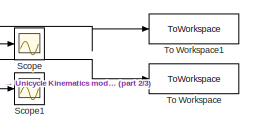
[diagram: root canvas - part 1/3, top right region]
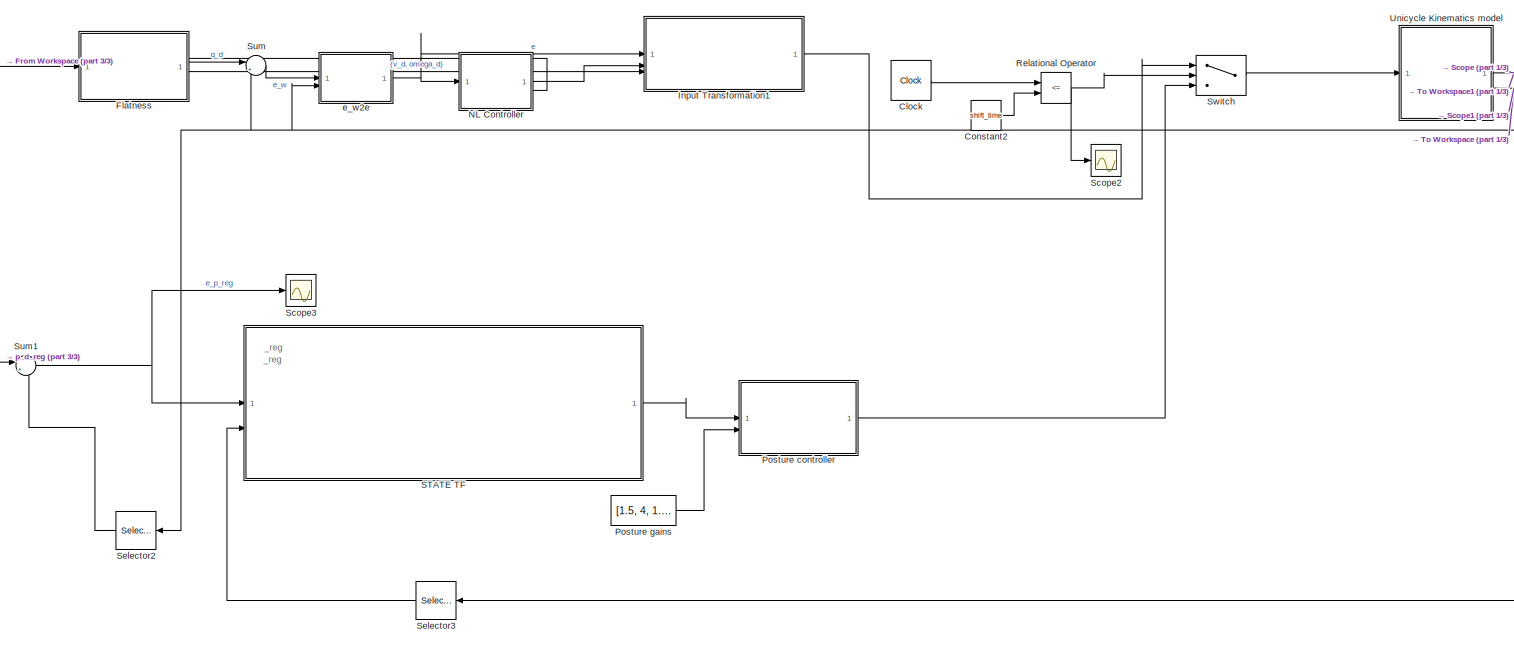
[diagram: root canvas - part 2/3, most of the canvas]
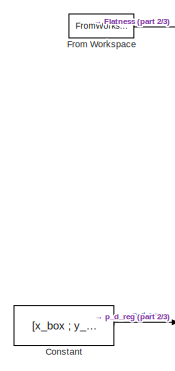
[diagram: root canvas - part 3/3, middle left region]
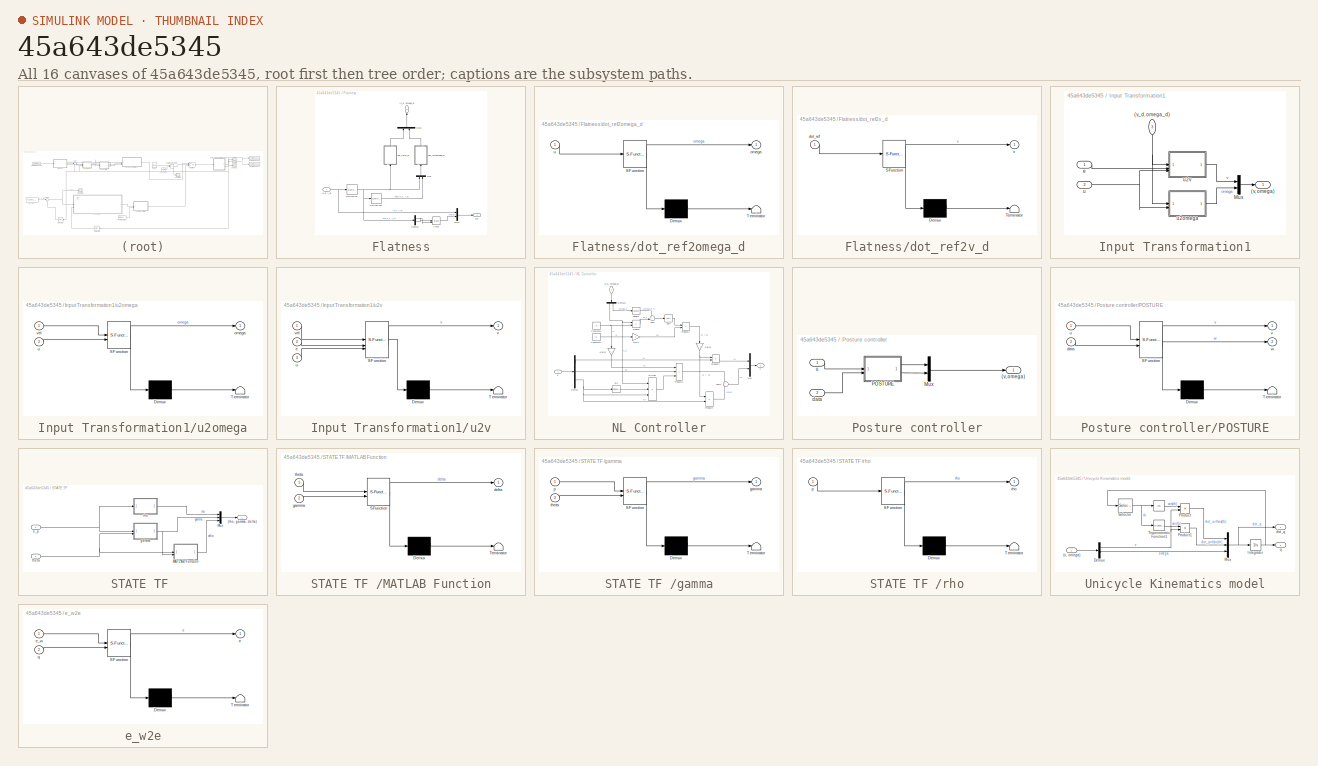
[diagram: thumbnail index - all 16 canvases of the model, root first then tree order]
MODEL slx_45a643de5345
KIND model
CONFIG AbsTol = auto
CONFIG EnableMultiTasking = off
CONFIG FixedStep = 0.0005
CONFIG MaxStep = auto
CONFIG MinStep = auto
CONFIG RelTol = 1e-3
CONFIG SampleTimeConstraint = Unconstrained
CONFIG SolverName = ode8
CONFIG StartTime = 0.0
CONFIG StopTime = 30
BLOCK [Clock] Clock
BLOCK [Constant] Constant
  Value = [x_box ; y_box]
BLOCK [Constant] Constant2
  Value = shift_time
BLOCK [SubSystem] Flatness
  PortSchema = {"entries":[{"content":{"sides":[{"content":{"connectorIds":["In1"]},"type":"ConnectorPlacement.EquallySpacedRectSide","uuid":"bc490c8e-5666-439b-9939-62bd84628b1f"},{"content":{"connectorIds":["Out1"],"side":"RIGHT"},"type":"ConnectorPlacement.EquallySpacedRectSide","uuid":"03a20fcc-2a82-4af2-a970-ff3426fda7d9"},{"content":{"connectorIds":["Out2"],"side":"TOP"},"type":"ConnectorPlacement.EquallyS...<+246ch>
BLOCK [Outport] Flatness/(v_d, omega_d)
  NameLocation = right
  Port = 2
BLOCK [Inport] Flatness/(x_d, y_d)
BLOCK [Trigonometry] Flatness/Atan2
  Operator = atan2
BLOCK [Demux] Flatness/Demux
  Outputs = 2
BLOCK [Derivative] Flatness/Derivative
BLOCK [Derivative] Flatness/Derivative1
BLOCK [Mux] Flatness/Mux
  DisplayOption = bar
  Inputs = 2
  NameLocation = right
BLOCK [Mux] Flatness/Mux1
  DisplayOption = bar
  Inputs = 2
BLOCK [Mux] Flatness/Mux2
  DisplayOption = bar
  Inputs = 2
  NameLocation = right
BLOCK [SubSystem] Flatness/dot_ref2omega_d
  ErrorFcn = Stateflow.Translate.translate
  NameLocation = right
  PermitHierarchicalResolution = ExplicitOnly
  SFBlockType = MATLAB Function
  TreatAsAtomicUnit = on
BLOCK [Demux] Flatness/dot_ref2omega_d/ Demux 
  Outputs = 1
BLOCK [S-Function] Flatness/dot_ref2omega_d/ SFunction 
  EnableBusSupport = off
  FunctionName = sf_sfun
  PortCounts = [1 2]
  SFcnIsStateOwnerBlock = off
  SFunctionDeploymentMode = off
  Tag = Stateflow S-Function 1
BLOCK [Terminator] Flatness/dot_ref2omega_d/ Terminator 
BLOCK [Outport] Flatness/dot_ref2omega_d/omega
BLOCK [Inport] Flatness/dot_ref2omega_d/u
BLOCK [SubSystem] Flatness/dot_ref2v_d
  ErrorFcn = Stateflow.Translate.translate
  NameLocation = right
  PermitHierarchicalResolution = ExplicitOnly
  SFBlockType = MATLAB Function
  TreatAsAtomicUnit = on
BLOCK [Demux] Flatness/dot_ref2v_d/ Demux 
  Outputs = 1
BLOCK [S-Function] Flatness/dot_ref2v_d/ SFunction 
  EnableBusSupport = off
  FunctionName = sf_sfun
  PortCounts = [1 2]
  SFcnIsStateOwnerBlock = off
  SFunctionDeploymentMode = off
  Tag = Stateflow S-Function 2
BLOCK [Terminator] Flatness/dot_ref2v_d/ Terminator 
BLOCK [Inport] Flatness/dot_ref2v_d/dot_ref
BLOCK [Outport] Flatness/dot_ref2v_d/v
BLOCK [Outport] Flatness/q_d
BLOCK [FromWorkspace] From Workspace
  OutDataTypeStr = double
  SampleTime = -1
  VariableName = ref
BLOCK [SubSystem] Input Transformation1
  PortSchema = {"entries":[{"content":{"sides":[{"content":{"connectorIds":["In1","In2"]},"type":"ConnectorPlacement.EquallySpacedRectSide","uuid":"4cbebdc1-8913-4bb0-9524-d854c819f784"},{"content":{"connectorIds":["Out1"],"side":"RIGHT"},"type":"ConnectorPlacement.EquallySpacedRectSide","uuid":"178a2b4a-0c33-47f3-8be3-bd76dfc47961"},{"content":{"connectorIds":["In3"],"side":"TOP"},"type":"ConnectorPlacement.Equ...<+251ch>
BLOCK [Outport] Input Transformation1/(v, omega)
BLOCK [Inport] Input Transformation1/(v_d, omega_d)
  NameLocation = left
  Port = 3
BLOCK [Mux] Input Transformation1/Mux
  DisplayOption = bar
  Inputs = 2
BLOCK [Inport] Input Transformation1/e
BLOCK [Inport] Input Transformation1/u
  Port = 2
BLOCK [SubSystem] Input Transformation1/u2omega
  ErrorFcn = Stateflow.Translate.translate
  PermitHierarchicalResolution = ExplicitOnly
  SFBlockType = MATLAB Function
  TreatAsAtomicUnit = on
BLOCK [Demux] Input Transformation1/u2omega/ Demux 
  Outputs = 1
BLOCK [S-Function] Input Transformation1/u2omega/ SFunction 
  EnableBusSupport = off
  FunctionName = sf_sfun
  PortCounts = [2 2]
  SFcnIsStateOwnerBlock = off
  SFunctionDeploymentMode = off
  Tag = Stateflow S-Function 6
BLOCK [Terminator] Input Transformation1/u2omega/ Terminator 
BLOCK [Outport] Input Transformation1/u2omega/omega
BLOCK [Inport] Input Transformation1/u2omega/u
  Port = 2
BLOCK [Inport] Input Transformation1/u2omega/vel
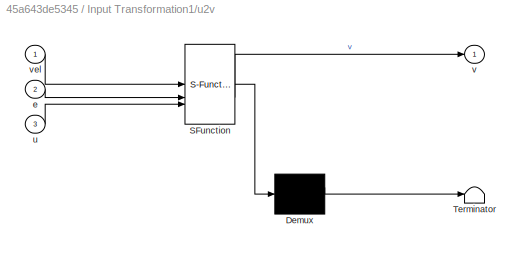
BLOCK [SubSystem] Input Transformation1/u2v
  ErrorFcn = Stateflow.Translate.translate
  PermitHierarchicalResolution = ExplicitOnly
  SFBlockType = MATLAB Function
  TreatAsAtomicUnit = on
BLOCK [Demux] Input Transformation1/u2v/ Demux 
  Outputs = 1
BLOCK [S-Function] Input Transformation1/u2v/ SFunction 
  EnableBusSupport = off
  FunctionName = sf_sfun
  PortCounts = [3 2]
  SFcnIsStateOwnerBlock = off
  SFunctionDeploymentMode = off
  Tag = Stateflow S-Function 7
BLOCK [Terminator] Input Transformation1/u2v/ Terminator 
BLOCK [Inport] Input Transformation1/u2v/e
  Port = 2
BLOCK [Inport] Input Transformation1/u2v/u
  Port = 3
BLOCK [Outport] Input Transformation1/u2v/v
BLOCK [Inport] Input Transformation1/u2v/vel
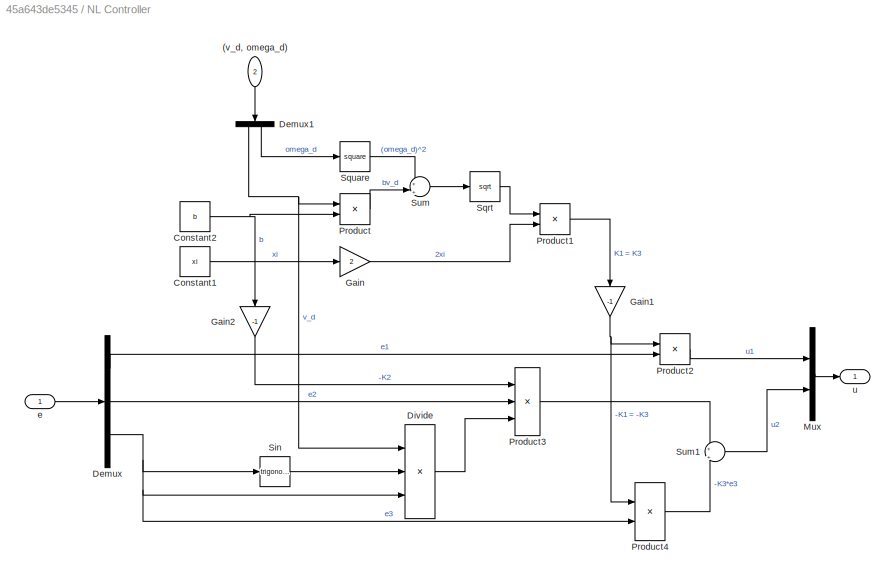
BLOCK [SubSystem] NL Controller
  PortSchema = {"entries":[{"content":{"sides":[{"content":{"connectorIds":["In1"]},"type":"ConnectorPlacement.EquallySpacedRectSide","uuid":"111a75b0-1720-417b-bb3b-4eef3b94ce3e"},{"content":{"connectorIds":["Out1"],"side":"RIGHT"},"type":"ConnectorPlacement.EquallySpacedRectSide","uuid":"fd08faf2-16f9-4b1a-8555-2743d2eb322e"},{"content":{"connectorIds":["In2"],"side":"TOP"},"type":"ConnectorPlacement.EquallySp...<+245ch>
BLOCK [Inport] NL Controller/(v_d, omega_d)
  NameLocation = left
  Port = 2
BLOCK [Constant] NL Controller/Constant1
  Value = xi
BLOCK [Constant] NL Controller/Constant2
  Value = b
BLOCK [Demux] NL Controller/Demux
  Outputs = 3
BLOCK [Demux] NL Controller/Demux1
  NameLocation = left
  Outputs = 2
BLOCK [Product] NL Controller/Divide
  Inputs = **/
BLOCK [Gain] NL Controller/Gain
  Gain = 2
BLOCK [Gain] NL Controller/Gain1
  Gain = -1
  NameLocation = left
BLOCK [Gain] NL Controller/Gain2
  Gain = -1
  NameLocation = left
BLOCK [Mux] NL Controller/Mux
  DisplayOption = bar
  Inputs = 2
BLOCK [Product] NL Controller/Product
BLOCK [Product] NL Controller/Product1
BLOCK [Product] NL Controller/Product2
BLOCK [Product] NL Controller/Product3
  Inputs = 3
BLOCK [Product] NL Controller/Product4
BLOCK [Trigonometry] NL Controller/Sin
BLOCK [Sqrt] NL Controller/Sqrt
BLOCK [Math] NL Controller/Square
  Operator = square
BLOCK [Sum] NL Controller/Sum
  Inputs = +|+
BLOCK [Sum] NL Controller/Sum1
  Inputs = +|+
BLOCK [Inport] NL Controller/e
BLOCK [Outport] NL Controller/u
BLOCK [SubSystem] Posture controller
BLOCK [Outport] Posture controller/(v, omega)
BLOCK [Mux] Posture controller/Mux
  DisplayOption = bar
  Inputs = 2
BLOCK [SubSystem] Posture controller/POSTURE
  ErrorFcn = Stateflow.Translate.translate
  PermitHierarchicalResolution = ExplicitOnly
  SFBlockType = MATLAB Function
  TreatAsAtomicUnit = on
BLOCK [Demux] Posture controller/POSTURE/ Demux 
  Outputs = 1
BLOCK [S-Function] Posture controller/POSTURE/ SFunction 
  EnableBusSupport = off
  FunctionName = sf_sfun
  PortCounts = [2 3]
  SFcnIsStateOwnerBlock = off
  SFunctionDeploymentMode = off
  Tag = Stateflow S-Function 8
BLOCK [Terminator] Posture controller/POSTURE/ Terminator 
BLOCK [Inport] Posture controller/POSTURE/data
  Port = 2
BLOCK [Inport] Posture controller/POSTURE/u
BLOCK [Outport] Posture controller/POSTURE/v
BLOCK [Outport] Posture controller/POSTURE/w
  Port = 2
BLOCK [Inport] Posture controller/data
  Port = 2
BLOCK [Inport] Posture controller/u
BLOCK [Constant] Posture gains
  Value = [1.5, 4, 1.5]
BLOCK [RelationalOperator] Relational Operator
  InputSameDT = off
  Operator = <=
  OutDataTypeStr = boolean
  RndMeth = Simplest
BLOCK [SubSystem] STATE TF 
BLOCK [Outport] STATE TF /(rho, gamma, delta)
BLOCK [SubSystem] STATE TF /MATLAB Function
  ErrorFcn = Stateflow.Translate.translate
  PermitHierarchicalResolution = ExplicitOnly
  SFBlockType = MATLAB Function
  TreatAsAtomicUnit = on
BLOCK [Demux] STATE TF /MATLAB Function/ Demux 
  Outputs = 1
BLOCK [S-Function] STATE TF /MATLAB Function/ SFunction 
  EnableBusSupport = off
  FunctionName = sf_sfun
  PortCounts = [2 2]
  SFcnIsStateOwnerBlock = off
  SFunctionDeploymentMode = off
  Tag = Stateflow S-Function 4
BLOCK [Terminator] STATE TF /MATLAB Function/ Terminator 
BLOCK [Outport] STATE TF /MATLAB Function/delta
BLOCK [Inport] STATE TF /MATLAB Function/gamma
  Port = 2
BLOCK [Inport] STATE TF /MATLAB Function/theta
BLOCK [Mux] STATE TF /Mux
  DisplayOption = bar
  Inputs = 3
BLOCK [Inport] STATE TF /e_p
BLOCK [SubSystem] STATE TF /gamma
  ErrorFcn = Stateflow.Translate.translate
  PermitHierarchicalResolution = ExplicitOnly
  SFBlockType = MATLAB Function
  TreatAsAtomicUnit = on
BLOCK [Demux] STATE TF /gamma/ Demux 
  Outputs = 1
BLOCK [S-Function] STATE TF /gamma/ SFunction 
  EnableBusSupport = off
  FunctionName = sf_sfun
  PortCounts = [2 2]
  SFcnIsStateOwnerBlock = off
  SFunctionDeploymentMode = off
  Tag = Stateflow S-Function 9
BLOCK [Terminator] STATE TF /gamma/ Terminator 
BLOCK [Outport] STATE TF /gamma/gamma
BLOCK [Inport] STATE TF /gamma/p
BLOCK [Inport] STATE TF /gamma/theta
  Port = 2
BLOCK [SubSystem] STATE TF /rho
  ErrorFcn = Stateflow.Translate.translate
  PermitHierarchicalResolution = ExplicitOnly
  SFBlockType = MATLAB Function
  TreatAsAtomicUnit = on
BLOCK [Demux] STATE TF /rho/ Demux 
  Outputs = 1
BLOCK [S-Function] STATE TF /rho/ SFunction 
  EnableBusSupport = off
  FunctionName = sf_sfun
  PortCounts = [1 2]
  SFcnIsStateOwnerBlock = off
  SFunctionDeploymentMode = off
  Tag = Stateflow S-Function 10
BLOCK [Terminator] STATE TF /rho/ Terminator 
BLOCK [Inport] STATE TF /rho/p
BLOCK [Outport] STATE TF /rho/rho
BLOCK [Inport] STATE TF /theta
  Port = 2
BLOCK [Scope] Scope
  ActiveDisplayYMaximum = 630.93592933265336
  ActiveDisplayYMinimum = -1203.2949656136366
  DataLoggingVariableName = ScopeData1
  Floating = off
  GraphicalSettings = {"AxesScalingProperties":{"AlignXAxis":"Center","AlignYAxis":"Center","AutoScaleXAxisLimits":false,"AxesScaling":"auto","AxesScalingNumUpdates":10,"ExpandOnly":true,"ScaleAxesLimitsAtStop":false,"XAxisDataRange":100,"YAxisDataRange":80},"DisplayProperties":{"ColorOrder":["auto","auto","auto","auto","auto","auto","auto","auto","auto","auto","auto","auto","auto","auto","auto","auto","auto","auto","a...<+2366ch>
  MultipleDisplayCache = [{"MaxYLimMag":10,"MaxYLimReal":630.93592933265336,"MinYLimMag":0,"MinYLimReal":-1203.2949656136366,"PlotAsMagnitudePhase":false,"ShowGrid":true,"ShowLegend":false,"Title":"%<SignalLabel>","YLabel":""}]
  NumInputPorts = 1
  ScopeFrameLocation = window
  WasSavedAsWebScope = on
  WindowPosition = [47.000000,38.000000,1874.000000,1011.000000,]
BLOCK [Scope] Scope1
  ActiveDisplayYMaximum = 1768.6609369051803
  ActiveDisplayYMinimum = -1531.5469839571588
  DisplayFullPath = on
  Floating = off
  GraphicalSettings = {"Style":{"BackgroundColor":[0.12941176470588237,0.12941176470588237,0.12941176470588237],"AxesColor":[0.07058823529411765,0.07058823529411765,0.07058823529411765],"LabelsColor":[0.8509803921568627,0.8509803921568627,0.8509803921568627],"PreserveColors":false,"Visible":[true,true,true],"LineStyle":["-","-","-"],"LineWidth":[1.5,1.5,1.5],"BarWidth":[0.9,0.9,0.9],"LineColor":["auto","auto","auto"],"...<+2358ch>
  MultipleDisplayCache = [{"MaxYLimMag":1518.8667037704936,"MaxYLimReal":1768.6609369051803,"MinYLimMag":0,"MinYLimReal":-1531.5469839571588,"PlotAsMagnitudePhase":false,"ShowGrid":true,"ShowLegend":true,"Title":"%<SignalLabel>","YLabel":""}]
  NumInputPorts = 1
  OpenAtSimulationStart = on
  ScopeFrameLocation = window
  ShowLegend = on
  Visible = on
  WasSavedAsWebScope = on
  WindowPosition = [47.000000,1.000000,937.000000,1011.000000,]
BLOCK [Scope] Scope2
  ActiveDisplayYMaximum = 1
  ActiveDisplayYMinimum = -1
  DataLoggingVariableName = ScopeData2
  Floating = off
  GraphicalSettings = {"Style":{"BackgroundColor":[0.12941176470588237,0.12941176470588237,0.12941176470588237],"AxesColor":[0.07058823529411765,0.07058823529411765,0.07058823529411765],"LabelsColor":[0.8509803921568627,0.8509803921568627,0.8509803921568627],"PreserveColors":false,"Visible":[true],"LineStyle":["-"],"LineWidth":[1.5],"BarWidth":[0.9],"LineColor":["auto"],"LineFaceAlpha":[1],"LineEdgeAlpha":[1],"Marker":...<+1926ch>
  MultipleDisplayCache = [{"MaxYLimMag":1,"MaxYLimReal":1,"MinYLimMag":0,"MinYLimReal":-1,"PlotAsMagnitudePhase":false,"ShowGrid":true,"ShowLegend":false,"Title":"%<SignalLabel>","YLabel":""}]
  NumInputPorts = 1
  ScopeFrameLocation = window
  WasSavedAsWebScope = on
  WindowPosition = [680.000000,367.000000,560.000000,420.000000,]
BLOCK [Scope] Scope3
  ActiveDisplayYMaximum = 1.6973761395009817E+6
  ActiveDisplayYMinimum = -1.5184248324601922E+7
  DataLoggingVariableName = ScopeData3
  Floating = off
  GraphicalSettings = {"Style":{"BackgroundColor":[0.12941176470588237,0.12941176470588237,0.12941176470588237],"AxesColor":[0.07058823529411765,0.07058823529411765,0.07058823529411765],"LabelsColor":[0.8509803921568627,0.8509803921568627,0.8509803921568627],"PreserveColors":false,"Visible":[true,true],"LineStyle":["-","-"],"LineWidth":[1.5,1.5],"BarWidth":[0.9,0.9],"LineColor":["auto","auto"],"LineFaceAlpha":[1,1],"Li...<+2108ch>
  MultipleDisplayCache = [{"MaxYLimMag":1.5184248324601922E+7,"MaxYLimReal":1.6973761395009817E+6,"MinYLimMag":0,"MinYLimReal":-1.5184248324601922E+7,"PlotAsMagnitudePhase":false,"ShowGrid":true,"ShowLegend":false,"Title":"%<SignalLabel>","YLabel":""}]
  NumInputPorts = 1
  ScopeFrameLocation = window
  WasSavedAsWebScope = on
  WindowPosition = [47.000000,38.000000,1874.000000,1011.000000,]
BLOCK [Selector] Selector2
  IndexOptions = Index vector (dialog)
  Indices = [1 2]
  InputPortWidth = 3
  OutputSizes = 1
BLOCK [Selector] Selector3
  IndexOptions = Index vector (dialog)
  Indices = [3]
  InputPortWidth = 3
  OutputSizes = 1
BLOCK [Sum] Sum
  Inputs = |+-
BLOCK [Sum] Sum1
  Inputs = |+-
BLOCK [Switch] Switch
  Criteria = u2 ~= 0
  InputSameDT = off
  SaturateOnIntegerOverflow = off
BLOCK [ToWorkspace] To Workspace
  FixptAsFi = on
  MaxDataPoints = inf
  SampleTime = -1
  SaveFormat = Timeseries
  VariableName = q
BLOCK [ToWorkspace] To Workspace1
  FixptAsFi = on
  MaxDataPoints = inf
  SampleTime = -1
  SaveFormat = Timeseries
  VariableName = qdot
BLOCK [SubSystem] Unicycle Kinematics model
BLOCK [Trigonometry] Unicycle Kinematics model/ 
  Operator = cos
BLOCK [Inport] Unicycle Kinematics model/(v, omega)
BLOCK [Demux] Unicycle Kinematics model/Demux
  Outputs = 2
BLOCK [Integrator] Unicycle Kinematics model/Integrator
  InitialCondition = [1e-16; 1e-16; pi/4]
BLOCK [Mux] Unicycle Kinematics model/Mux
  DisplayOption = bar
  Inputs = 3
BLOCK [Product] Unicycle Kinematics model/Product
BLOCK [Product] Unicycle Kinematics model/Product1
BLOCK [Selector] Unicycle Kinematics model/Selector
  IndexOptions = Index vector (dialog)
  Indices = [3]
  InputPortWidth = 3
  OutputSizes = 1
BLOCK [Trigonometry] Unicycle Kinematics model/Trigonometric Function1
BLOCK [Outport] Unicycle Kinematics model/dot_q
BLOCK [Outport] Unicycle Kinematics model/q
  Port = 2
BLOCK [SubSystem] e_w2e
  ErrorFcn = Stateflow.Translate.translate
  PermitHierarchicalResolution = ExplicitOnly
  SFBlockType = MATLAB Function
  TreatAsAtomicUnit = on
BLOCK [Demux] e_w2e/ Demux 
  Outputs = 1
BLOCK [S-Function] e_w2e/ SFunction 
  EnableBusSupport = off
  FunctionName = sf_sfun
  PortCounts = [2 2]
  SFcnIsStateOwnerBlock = off
  SFunctionDeploymentMode = off
  Tag = Stateflow S-Function 3
BLOCK [Terminator] e_w2e/ Terminator 
BLOCK [Outport] e_w2e/e
BLOCK [Inport] e_w2e/e_w
BLOCK [Inport] e_w2e/q
  Port = 2
ANNOTATION (root): _reg
LINE Clock:1 -> Relational Operator:1
LINE Constant2:1 -> Relational Operator:2
LINE Constant:1 -> Sum1:1
NET Flatness/(x_d, y_d):1 -> Flatness/Derivative:1, Flatness/Mux1:1
LINE Flatness/Atan2:1 -> Flatness/Mux1:2
LINE Flatness/Demux:1 -> Flatness/Atan2:2
LINE Flatness/Demux:2 -> Flatness/Atan2:1
LINE Flatness/Derivative1:1 -> Flatness/Mux:2
NET Flatness/Derivative:1 -> Flatness/Demux:1, Flatness/Derivative1:1, Flatness/Mux:1, Flatness/dot_ref2v_d:1
LINE Flatness/Mux1:1 -> Flatness/q_d:1
LINE Flatness/Mux2:1 -> Flatness/(v_d, omega_d):1
LINE Flatness/Mux:1 -> Flatness/dot_ref2omega_d:1
LINE Flatness/dot_ref2omega_d:1 -> Flatness/Mux2:2
LINE Flatness/dot_ref2v_d:1 -> Flatness/Mux2:1
LINE Flatness:1 -> Sum:1
NET Flatness:2 -> Input Transformation1:3, NL Controller:2
LINE From Workspace:1 -> Flatness:1
NET Input Transformation1/(v_d, omega_d):1 -> Input Transformation1/u2omega:1, Input Transformation1/u2v:1
LINE Input Transformation1/Mux:1 -> Input Transformation1/(v, omega):1
LINE Input Transformation1/e:1 -> Input Transformation1/u2v:2
LINE Input Transformation1/u2omega:1 -> Input Transformation1/Mux:2
LINE Input Transformation1/u2v:1 -> Input Transformation1/Mux:1
NET Input Transformation1/u:1 -> Input Transformation1/u2omega:2, Input Transformation1/u2v:3
LINE Input Transformation1:1 -> Switch:1
LINE NL Controller/(v_d, omega_d):1 -> NL Controller/Demux1:1
LINE NL Controller/Constant1:1 -> NL Controller/Gain:1
NET NL Controller/Constant2:1 -> NL Controller/Gain2:1, NL Controller/Product:2
NET NL Controller/Demux1:1 -> NL Controller/Divide:1, NL Controller/Product:1
LINE NL Controller/Demux1:2 -> NL Controller/Square:1
LINE NL Controller/Demux:1 -> NL Controller/Product2:2
LINE NL Controller/Demux:2 -> NL Controller/Product3:2
NET NL Controller/Demux:3 -> NL Controller/Divide:3, NL Controller/Product4:2, NL Controller/Sin:1
LINE NL Controller/Divide:1 -> NL Controller/Product3:3
NET NL Controller/Gain1:1 -> NL Controller/Product2:1, NL Controller/Product4:1
LINE NL Controller/Gain2:1 -> NL Controller/Product3:1
LINE NL Controller/Gain:1 -> NL Controller/Product1:2
LINE NL Controller/Mux:1 -> NL Controller/u:1
LINE NL Controller/Product1:1 -> NL Controller/Gain1:1
LINE NL Controller/Product2:1 -> NL Controller/Mux:1
LINE NL Controller/Product3:1 -> NL Controller/Sum1:1
LINE NL Controller/Product4:1 -> NL Controller/Sum1:2
LINE NL Controller/Product:1 -> NL Controller/Sum:2
LINE NL Controller/Sin:1 -> NL Controller/Divide:2
LINE NL Controller/Sqrt:1 -> NL Controller/Product1:1
LINE NL Controller/Square:1 -> NL Controller/Sum:1
LINE NL Controller/Sum1:1 -> NL Controller/Mux:2
LINE NL Controller/Sum:1 -> NL Controller/Sqrt:1
LINE NL Controller/e:1 -> NL Controller/Demux:1
LINE NL Controller:1 -> Input Transformation1:2
LINE Posture controller/Mux:1 -> Posture controller/(v, omega):1
LINE Posture controller/POSTURE:1 -> Posture controller/Mux:1
LINE Posture controller/POSTURE:2 -> Posture controller/Mux:2
LINE Posture controller/data:1 -> Posture controller/POSTURE:2
LINE Posture controller/u:1 -> Posture controller/POSTURE:1
LINE Posture controller:1 -> Switch:3
LINE Posture gains:1 -> Posture controller:2
NET Relational Operator:1 -> Scope2:1, Switch:2
LINE STATE TF /MATLAB Function:1 -> STATE TF /Mux:3
LINE STATE TF /Mux:1 -> STATE TF /(rho, gamma, delta):1
NET STATE TF /e_p:1 -> STATE TF /gamma:1, STATE TF /rho:1
NET STATE TF /gamma:1 -> STATE TF /MATLAB Function:2, STATE TF /Mux:2
LINE STATE TF /rho:1 -> STATE TF /Mux:1
NET STATE TF /theta:1 -> STATE TF /MATLAB Function:1, STATE TF /gamma:2
LINE STATE TF :1 -> Posture controller:1
LINE Selector2:1 -> Sum1:2
LINE Selector3:1 -> STATE TF :2
NET Sum1:1 -> STATE TF :1, Scope3:1
LINE Sum:1 -> e_w2e:1
LINE Switch:1 -> Unicycle Kinematics model:1
LINE Unicycle Kinematics model/ :1 -> Unicycle Kinematics model/Product:1
LINE Unicycle Kinematics model/(v, omega):1 -> Unicycle Kinematics model/Demux:1
NET Unicycle Kinematics model/Demux:1 -> Unicycle Kinematics model/Product1:2, Unicycle Kinematics model/Product:2
LINE Unicycle Kinematics model/Demux:2 -> Unicycle Kinematics model/Mux:3
NET Unicycle Kinematics model/Integrator:1 -> Unicycle Kinematics model/Selector:1, Unicycle Kinematics model/q:1
NET Unicycle Kinematics model/Mux:1 -> Unicycle Kinematics model/Integrator:1, Unicycle Kinematics model/dot_q:1
LINE Unicycle Kinematics model/Product1:1 -> Unicycle Kinematics model/Mux:2
LINE Unicycle Kinematics model/Product:1 -> Unicycle Kinematics model/Mux:1
NET Unicycle Kinematics model/Selector:1 -> Unicycle Kinematics model/ :1, Unicycle Kinematics model/Trigonometric Function1:1
LINE Unicycle Kinematics model/Trigonometric Function1:1 -> Unicycle Kinematics model/Product1:1
NET Unicycle Kinematics model:1 -> Scope:1, To Workspace1:1
NET Unicycle Kinematics model:2 -> Scope1:1, Selector2:1, Selector3:1, Sum:2, To Workspace:1, e_w2e:2
NET e_w2e:1 -> Input Transformation1:1, NL Controller:1
note: NET lines group one-source signal fan-out (src -> all destinations, sorted); 1:1 wires keep LINE
CHART Flatness/dot_ref2v_d states=1 transitions=1
  STATE_LABEL 'eML_blk_kernel()'
  STATE_LABEL 'SCRIPT:\nfunction v = fcn(dot_ref)\n    dot_x = dot_ref(1);\n    dot_y = dot_ref(2);\n\n    v = sqrt(dot_x^2 + dot_y^2);\n\n    v_min = 1e-6;\n    if ~isfinite(v) || v < v_min\n        v = v_min;\n    end\nend\n'
CHART e_w2e states=1 transitions=1
  STATE_LABEL 'eML_blk_kernel()'
  STATE_LABEL 'SCRIPT:\nfunction e = fcn(e_w, q)\n    theta = q(3);\n\n    R = [cos(theta) sin(theta) 0; \n        -sin(theta) cos(theta) 0;\n             0          0      1];\n\n    e = R*e_w; \n'
CHART STATE TF /MATLAB Function states=1 transitions=1
  STATE_LABEL 'eML_blk_kernel()'
  STATE_LABEL 'SCRIPT:\nfunction delta = fcn(theta, gamma)\n\n\n\ndelta = theta + gamma;\nend\n'
CHART Input Transformation1/u2omega states=1 transitions=1
  STATE_LABEL 'eML_blk_kernel()'
  STATE_LABEL 'SCRIPT:\nfunction omega = fcn(vel,u)\n    omega_d = vel(2);\n\n    omega = omega_d-u(2);\n\n'
CHART Input Transformation1/u2v states=1 transitions=1
  STATE_LABEL 'eML_blk_kernel()'
  STATE_LABEL 'SCRIPT:\nfunction v = fcn(vel, e, u)\n v_d = vel(1);\n\n v = v_d*cos(e(3))-u(1);\n'
CHART Posture controller/POSTURE states=1 transitions=1
  STATE_LABEL 'eML_blk_kernel()'
  STATE_LABEL 'SCRIPT:\nfunction [v,w]= fcn(u, data)\n\nK1 = data(1);\nK2 = data(2);\nK3 = data(3);\n\nrho = u(1);\ngamma = u(2);\ndelta = u(3);\n\n\nv = K1 * rho * cos(gamma);\n\nif abs(gamma) < 1e-6\n    s = 1;                 % sin(gamma)/gamma -> 1\nelse\n    s = sin(gamma)/gamma;\nend\nw = K2*gamma + K1*(s*cos(gamma))*(gamma + K3*delta);\n\n'
CHART STATE TF /gamma states=1 transitions=1
  STATE_LABEL 'eML_blk_kernel()'
  STATE_LABEL 'SCRIPT:\nfunction gamma = fcn(p, theta)\n\ne_x = -p(1);\ne_y = -p(2);\n\ngamma = atan2(e_y,e_x) + pi - theta;\n\nend'
CHART STATE TF /rho states=1 transitions=1
  STATE_LABEL 'eML_blk_kernel()'
  STATE_LABEL 'SCRIPT:\nfunction rho = fcn(p)\ne_x = -p(1);\ne_y = -p(2);\nrho = sqrt(e_x^2 + e_y^2);\nend\n'
CHART Flatness/dot_ref2omega_d states=1 transitions=1
  STATE_LABEL 'eML_blk_kernel()'
  STATE_LABEL 'SCRIPT:\nfunction omega = fcn(u)\n    dot_x  = u(1);\n    dot_y  = u(2);\n    ddot_x = u(3);\n    ddot_y = u(4);\n\n    den = dot_x^2 + dot_y^2;\n\n    % Guard against singularity / non-finite inputs\n    eps_den = 1e-6;\n    if ~isfinite(den) || den < eps_den\n        omega = 0;             % safe default at standstill\n        return;\n    end\n\n    num = dot_x*ddot_y - dot_y*ddot_x;\n\n    if ~isfinite(num)\n   ...<+253ch>'
CHART  states=0 transitions=0
CHART  states=0 transitions=0
CHART  states=0 transitions=0
CHART  states=0 transitions=0
CHART  states=0 transitions=0
CHART  states=0 transitions=0
CHART  states=0 transitions=0
CHART  states=0 transitions=0
CHART  states=0 transitions=0
